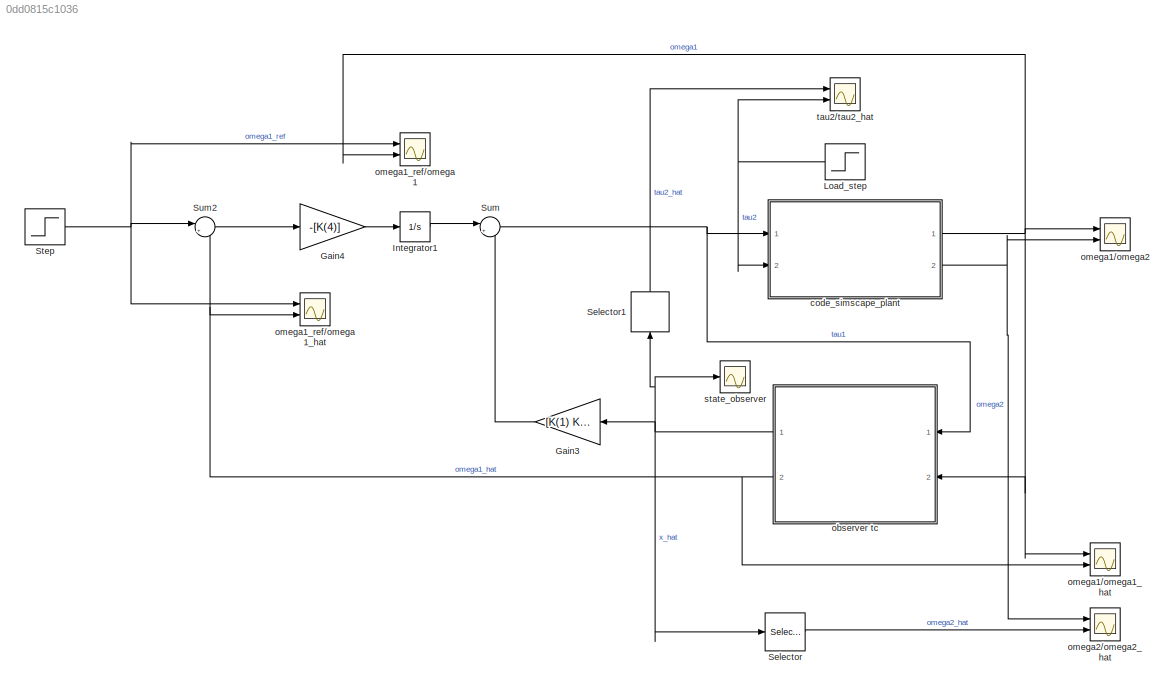
MODEL slx_0dd0815c1036
KIND model
CONFIG AbsTol = auto
CONFIG EnableMultiTasking = off
CONFIG FixedStep = auto
CONFIG MaxStep = auto
CONFIG MinStep = auto
CONFIG RelTol = 1e-3
CONFIG SampleTimeConstraint = Unconstrained
CONFIG SolverName = daessc
CONFIG StartTime = 0.0
CONFIG StopTime = simlength
BLOCK [Gain] Gain3
  Gain = [K(1) K(2) K(3) 0]
  Multiplication = Matrix(K*u)
BLOCK [Gain] Gain4
  Gain = -[K(4)]
  NameLocation = top
BLOCK [Integrator] Integrator1
  Ports = [1, 1]
BLOCK [Step] Load_step
  After = load_torque
  NameLocation = right
  SampleTime = 0
  Time = t_load
BLOCK [Selector] Selector
  IndexOptions = Index vector (dialog)
  Indices = 2
  InputPortWidth = 4
  OutputSizes = 1
  Ports = [1, 1]
BLOCK [Selector] Selector1
  IndexOptions = Index vector (dialog)
  Indices = 4
  InputPortWidth = 4
  NameLocation = right
  OutputSizes = 1
  Ports = [1, 1]
BLOCK [Step] Step
  SampleTime = 0
BLOCK [Sum] Sum
  Inputs = |+-
  Ports = [2, 1]
BLOCK [Sum] Sum2
  Inputs = |+-
  Ports = [2, 1]
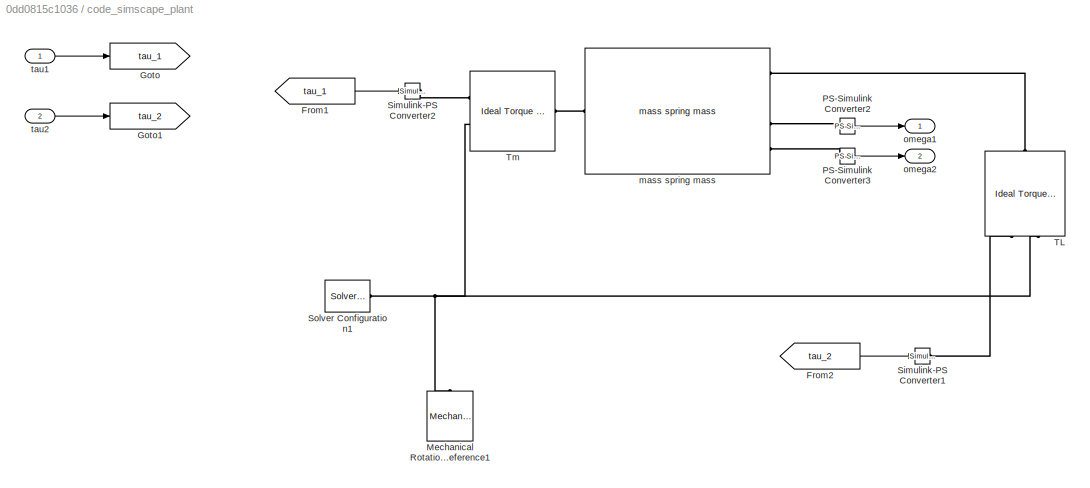
BLOCK [SubSystem] code_simscape_plant 
  Ports = [2, 2]
  RequestExecContextInheritance = off
BLOCK [From] code_simscape_plant /From1
  GotoTag = tau_1
BLOCK [From] code_simscape_plant /From2
  GotoTag = tau_2
BLOCK [Goto] code_simscape_plant /Goto
  GotoTag = tau_1
BLOCK [Goto] code_simscape_plant /Goto1
  GotoTag = tau_2
BLOCK [Reference] code_simscape_plant /Mechanical Rotational Reference1  REF=fl_lib/Mechanical/Rotational Elements/Mechanical
Rotational Reference
  NameLocation = right
  Ports = [0, 0, 0, 0, 0, 1]
  SourceBlock = fl_lib/Mechanical/Rotational Elements/Mechanical\nRotational Reference
  SourceProductBaseCode = SS
  SourceType = Mechanical\nRotational Reference
BLOCK [Reference] code_simscape_plant /PS-Simulink Converter2  REF=nesl_utility/PS-Simulink
Converter
  Ports = [0, 1, 0, 0, 0, 1]
  SourceBlock = nesl_utility/PS-Simulink\nConverter
  SourceProductBaseCode = PW,SS
  SourceType = PS-Simulink\nConverter
BLOCK [Reference] code_simscape_plant /PS-Simulink Converter3  REF=nesl_utility/PS-Simulink
Converter
  NameLocation = top
  Ports = [0, 1, 0, 0, 0, 1]
  SourceBlock = nesl_utility/PS-Simulink\nConverter
  SourceProductBaseCode = PW,SS
  SourceType = PS-Simulink\nConverter
BLOCK [Reference] code_simscape_plant /Simulink-PS Converter1  REF=nesl_utility/Simulink-PS
Converter
  Ports = [1, 0, 0, 0, 0, 0, 1]
  SourceBlock = nesl_utility/Simulink-PS\nConverter
  SourceProductBaseCode = PW,SS
  SourceType = Simulink-PS\nConverter
BLOCK [Reference] code_simscape_plant /Simulink-PS Converter2  REF=nesl_utility/Simulink-PS
Converter
  Ports = [1, 0, 0, 0, 0, 0, 1]
  SourceBlock = nesl_utility/Simulink-PS\nConverter
  SourceProductBaseCode = PW,SS
  SourceType = Simulink-PS\nConverter
BLOCK [Reference] code_simscape_plant /Solver Configuration1  REF=nesl_utility/Solver
Configuration
  Ports = [0, 0, 0, 0, 0, 0, 1]
  SourceBlock = nesl_utility/Solver\nConfiguration
  SourceProductBaseCode = PW,SS
  SourceType = Solver\nConfiguration
BLOCK [Reference] code_simscape_plant /TL  REF=fl_lib/Mechanical/Mechanical Sources/Ideal Torque Source
  NameLocation = right
  Ports = [0, 0, 0, 0, 0, 1, 2]
  SourceBlock = fl_lib/Mechanical/Mechanical Sources/Ideal Torque Source
  SourceProductBaseCode = SS
  SourceType = Ideal Torque Source
BLOCK [Reference] code_simscape_plant /Tm   REF=fl_lib/Mechanical/Mechanical Sources/Ideal Torque Source
  Ports = [0, 0, 0, 0, 0, 1, 2]
  SourceBlock = fl_lib/Mechanical/Mechanical Sources/Ideal Torque Source
  SourceProductBaseCode = SS
  SourceType = Ideal Torque Source
BLOCK [Reference] code_simscape_plant /mass spring mass  REF=mass_spring_mass_lib/mass spring mass
  Ports = [0, 0, 0, 0, 0, 1, 4]
  SourceBlock = mass_spring_mass_lib/mass spring mass
  SourceType = mass spring mass
BLOCK [Outport] code_simscape_plant /omega1
BLOCK [Outport] code_simscape_plant /omega2
  Port = 2
BLOCK [Inport] code_simscape_plant /tau1
BLOCK [Inport] code_simscape_plant /tau2
  Port = 2
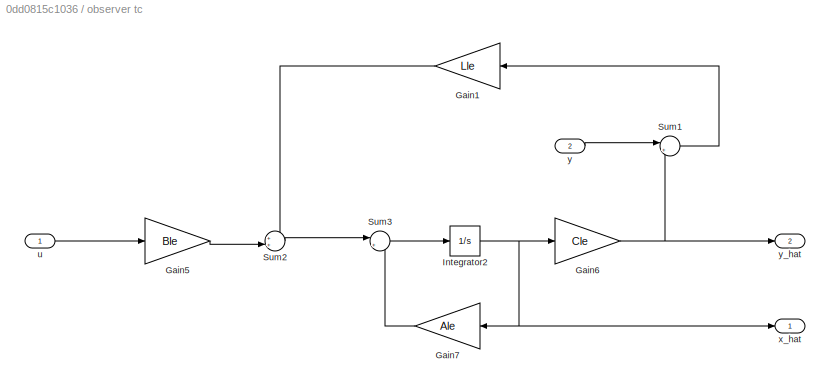
BLOCK [SubSystem] observer tc
  NameLocation = top
  Ports = [2, 2]
  RequestExecContextInheritance = off
BLOCK [Gain] observer tc/Gain1
  Gain = Lle
  Multiplication = Matrix(K*u)
  NameLocation = top
BLOCK [Gain] observer tc/Gain5
  Gain = Ble
  Multiplication = Matrix(K*u)
BLOCK [Gain] observer tc/Gain6
  Gain = Cle
  Multiplication = Matrix(K*u)
BLOCK [Gain] observer tc/Gain7
  Gain = Ale
  Multiplication = Matrix(K*u)
BLOCK [Integrator] observer tc/Integrator2
  Ports = [1, 1]
BLOCK [Sum] observer tc/Sum1
  Inputs = |+-
  Ports = [2, 1]
BLOCK [Sum] observer tc/Sum2
  Inputs = ++|
  Ports = [2, 1]
BLOCK [Sum] observer tc/Sum3
  Inputs = |++
  Ports = [2, 1]
BLOCK [Inport] observer tc/u
BLOCK [Outport] observer tc/x_hat
BLOCK [Inport] observer tc/y
  Port = 2
BLOCK [Outport] observer tc/y_hat
  Port = 2
BLOCK [Scope] omega1//omega1_hat
  Floating = off
  NumInputPorts = 2
  Ports = [2]
  ScopeSpecificationString = Simulink.scopes.TimeScopeBlockCfg('CurrentConfiguration', extmgr.ConfigurationSet(extmgr.Configuration('Core','General UI',true),extmgr.Configuration('Core','Source UI',true),extmgr.Configuration('Sources','WiredSimulink',true,'DataLoggingVariableName','ScopeData2'),extmgr.Configuration('Visuals','Time Domain',true,'SerializedDisplays',{struct('MinYLimReal','-1.06166','MaxYLimReal','4.25568','YLab...<+1620ch>
BLOCK [Scope] omega1//omega2
  Floating = off
  NumInputPorts = 2
  Ports = [2]
  ScopeSpecificationString = Simulink.scopes.TimeScopeBlockCfg('CurrentConfiguration', extmgr.ConfigurationSet(extmgr.Configuration('Core','General UI',true),extmgr.Configuration('Core','Source UI',true),extmgr.Configuration('Sources','WiredSimulink',true,'DataLoggingVariableName','ScopeData1'),extmgr.Configuration('Visuals','Time Domain',true,'SerializedDisplays',{struct('MinYLimReal','-1.28645','MaxYLimReal','6.39234','YLab...<+1677ch>
BLOCK [Scope] omega1_ref//omega1
  Floating = off
  NumInputPorts = 2
  Ports = [2]
  ScopeSpecificationString = Simulink.scopes.TimeScopeBlockCfg('CurrentConfiguration', extmgr.ConfigurationSet(extmgr.Configuration('Core','General UI',true),extmgr.Configuration('Core','Source UI',true),extmgr.Configuration('Sources','WiredSimulink',true,'DataLoggingVariableName','ScopeData1'),extmgr.Configuration('Visuals','Time Domain',true,'SerializedDisplays',{struct('MinYLimReal','-1.06022','MaxYLimReal','4.24278','YLab...<+1654ch>
BLOCK [Scope] omega1_ref//omega1_hat
  Floating = off
  NumInputPorts = 2
  Ports = [2]
  ScopeSpecificationString = Simulink.scopes.TimeScopeBlockCfg('CurrentConfiguration', extmgr.ConfigurationSet(extmgr.Configuration('Core','General UI',true),extmgr.Configuration('Core','Source UI',true),extmgr.Configuration('Sources','WiredSimulink',true,'DataLoggingVariableName','ScopeData1'),extmgr.Configuration('Visuals','Time Domain',true,'SerializedDisplays',{struct('MinYLimReal','-5.64261','MaxYLimReal','3.74108','YLab...<+1653ch>
BLOCK [Scope] omega2//omega2_hat
  Floating = off
  NumInputPorts = 2
  Ports = [2]
  ScopeSpecificationString = Simulink.scopes.TimeScopeBlockCfg('CurrentConfiguration', extmgr.ConfigurationSet(extmgr.Configuration('Core','General UI',true),extmgr.Configuration('Core','Source UI',true),extmgr.Configuration('Sources','WiredSimulink',true,'DataLoggingVariableName','ScopeData1'),extmgr.Configuration('Visuals','Time Domain',true,'SerializedDisplays',{struct('MinYLimReal','-1.2654','MaxYLimReal','6.39','YLabelRe...<+1663ch>
BLOCK [Scope] state_observer
  Floating = off
  NumInputPorts = 1
  Ports = [1]
  ScopeSpecificationString = Simulink.scopes.TimeScopeBlockCfg('CurrentConfiguration', extmgr.ConfigurationSet(extmgr.Configuration('Core','General UI',true),extmgr.Configuration('Core','Source UI',true),extmgr.Configuration('Sources','WiredSimulink',true,'DataLoggingVariableName','ScopeData2'),extmgr.Configuration('Visuals','Time Domain',true,'SerializedDisplays',{struct('MinYLimReal','-0.54663','MaxYLimReal','2.03668','YLab...<+1461ch>
BLOCK [Scope] tau2//tau2_hat
  Floating = off
  NumInputPorts = 2
  Ports = [2]
  ScopeSpecificationString = Simulink.scopes.TimeScopeBlockCfg('CurrentConfiguration', extmgr.ConfigurationSet(extmgr.Configuration('Core','General UI',true),extmgr.Configuration('Core','Source UI',true),extmgr.Configuration('Sources','WiredSimulink',true,'DataLoggingVariableName','ScopeData1'),extmgr.Configuration('Visuals','Time Domain',true,'SerializedDisplays',{struct('MinYLimReal','-0.125','MaxYLimReal','1.125','YLabelRe...<+1665ch>
LINE Gain3:1 -> Sum:2
LINE Gain4:1 -> Integrator1:1
LINE Integrator1:1 -> Sum:1
NET Load_step:1 -> code_simscape_plant :2, tau2//tau2_hat:2
LINE Selector1:1 -> tau2//tau2_hat:1
LINE Selector:1 -> omega2//omega2_hat:2
NET Step:1 -> Sum2:1, omega1_ref//omega1:1, omega1_ref//omega1_hat:1
LINE Sum2:1 -> Gain4:1
NET Sum:1 -> code_simscape_plant :1, observer tc:1
LINE code_simscape_plant /From1:1 -> code_simscape_plant /Simulink-PS Converter2:1
LINE code_simscape_plant /From2:1 -> code_simscape_plant /Simulink-PS Converter1:1
LINE code_simscape_plant /PS-Simulink Converter2:1 -> code_simscape_plant /omega1:1
LINE code_simscape_plant /PS-Simulink Converter3:1 -> code_simscape_plant /omega2:1
LINE code_simscape_plant /tau1:1 -> code_simscape_plant /Goto:1
LINE code_simscape_plant /tau2:1 -> code_simscape_plant /Goto1:1
NET code_simscape_plant :1 -> observer tc:2, omega1//omega1_hat:1, omega1//omega2:1, omega1_ref//omega1:2
NET code_simscape_plant :2 -> omega1//omega2:2, omega2//omega2_hat:1
LINE observer tc/Gain1:1 -> observer tc/Sum2:1
LINE observer tc/Gain5:1 -> observer tc/Sum2:2
NET observer tc/Gain6:1 -> observer tc/Sum1:2, observer tc/y_hat:1
LINE observer tc/Gain7:1 -> observer tc/Sum3:2
NET observer tc/Integrator2:1 -> observer tc/Gain6:1, observer tc/Gain7:1, observer tc/x_hat:1
LINE observer tc/Sum1:1 -> observer tc/Gain1:1
LINE observer tc/Sum2:1 -> observer tc/Sum3:1
LINE observer tc/Sum3:1 -> observer tc/Integrator2:1
LINE observer tc/u:1 -> observer tc/Gain5:1
LINE observer tc/y:1 -> observer tc/Sum1:1
NET observer tc:1 -> Gain3:1, Selector1:1, Selector:1, state_observer:1
NET observer tc:2 -> Sum2:2, omega1//omega1_hat:2, omega1_ref//omega1_hat:2
PNET net1: code_simscape_plant /Mechanical Rotational Reference1:LConn1 -- code_simscape_plant /Solver Configuration1:RConn1 -- code_simscape_plant /TL:RConn2 -- code_simscape_plant /Tm :RConn2
PLINE code_simscape_plant /PS-Simulink Converter2:LConn1 -- code_simscape_plant /mass spring mass:RConn3
PLINE code_simscape_plant /PS-Simulink Converter3:LConn1 -- code_simscape_plant /mass spring mass:RConn4
PLINE code_simscape_plant /Simulink-PS Converter1:RConn1 -- code_simscape_plant /TL:RConn1
PLINE code_simscape_plant /Simulink-PS Converter2:RConn1 -- code_simscape_plant /Tm :RConn1
PLINE code_simscape_plant /TL:LConn1 -- code_simscape_plant /mass spring mass:RConn1
PLINE code_simscape_plant /Tm :LConn1 -- code_simscape_plant /mass spring mass:LConn1
note: NET lines group one-source signal fan-out (src -> all destinations, sorted); 1:1 wires keep LINE; PNET lines group multi-terminal physical nets as a canonical sorted terminal list (undirected conserving connections); 2-terminal nets keep the pairwise PLINE form
